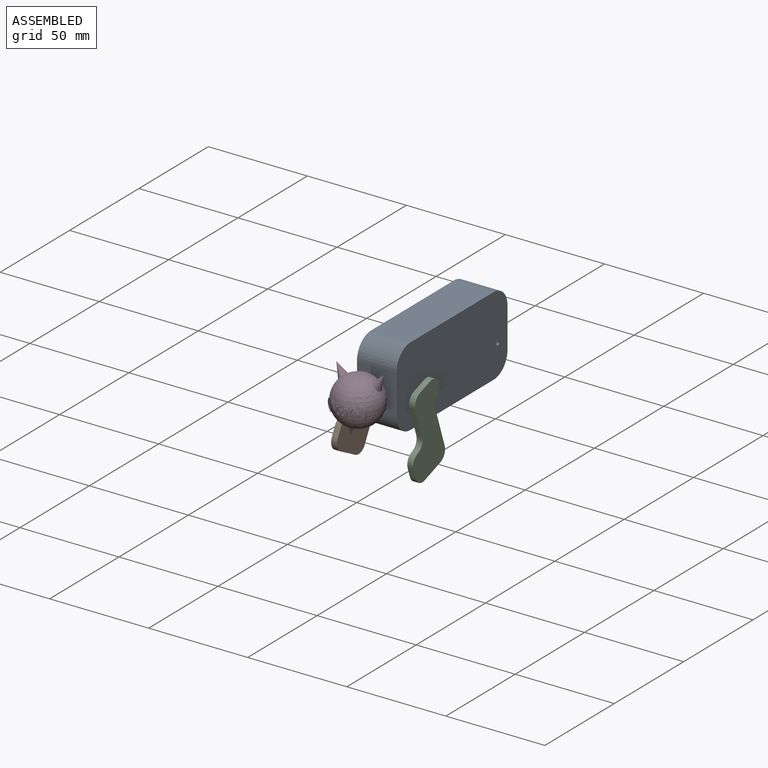
[diagram: assembled view]
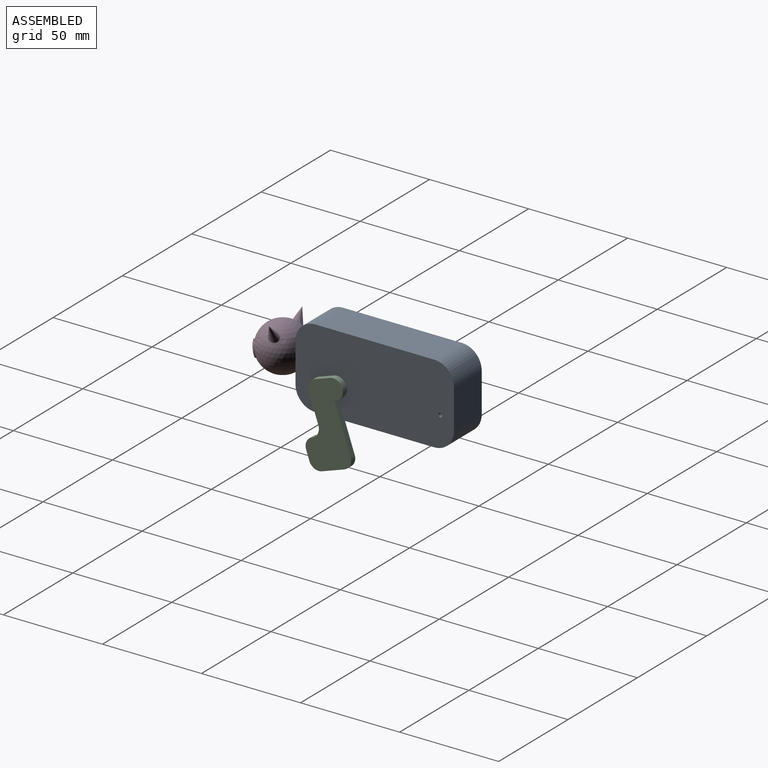
[diagram: assembled view, second angle]
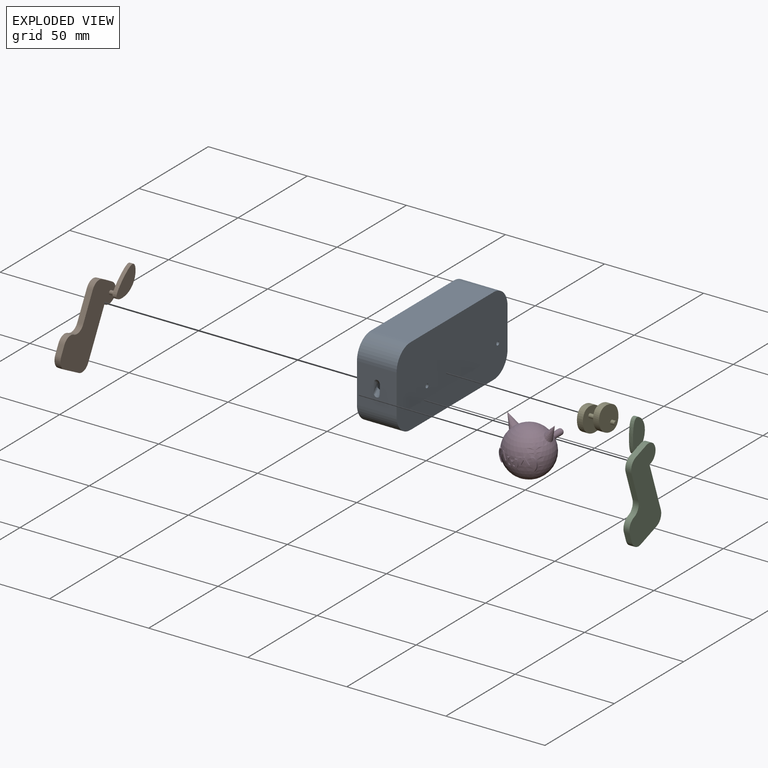
[diagram: exploded view]
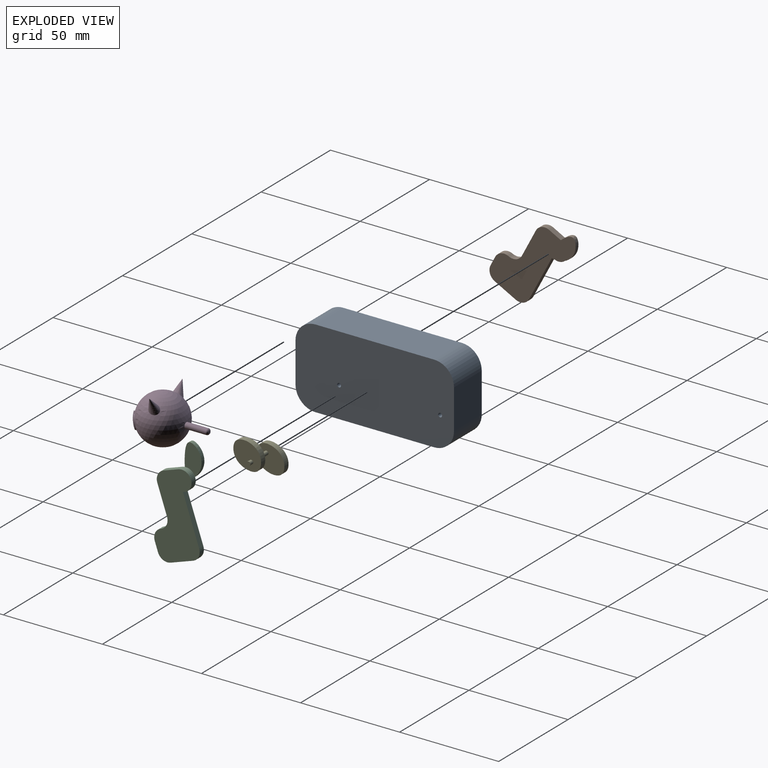
[diagram: exploded view, second angle]
ASSEMBLY  parts=5 mates=3
PART A: 29 faces, bbox 20x80x40 mm
  f0: plane 75x35mm, normal (-1,0,0), area 2567.3mm2, adj f2,f13,f14,f15,f16,f17,f18,f22
  f1: plane 75x35mm, normal (1,0,0), area 2567.3mm2, adj f2,f13,f14,f15,f16,f17,f18,f21
  f2: plane 20.01x15.01mm, normal (0,1,0), area 292.9mm2, adj f0,f1,f17,f18,f19
  f3: plane 60x20mm, normal (0,0,-1), area 1200mm2, adj f7,f8,f9,f12
  f4: plane 20x20mm, normal (0,1,0), area 400mm2, adj f7,f8,f9,f10
  f5: plane 60x20mm, normal (0,0,1), area 1200mm2, adj f7,f8,f10,f11
  f6: plane 20.01x20.01mm, normal (0,-1,0), area 377.9mm2, adj f7,f8,f11,f12,f19
  f7: plane 80x40mm, normal (1,0,0), area 3107.9mm2, adj f3,f4,f5,f6,f9,f10,f11,f12
  f8: plane 80x40mm, normal (-1,0,0), area 3107.9mm2, adj f3,f4,f5,f6,f9,f10,f11,f12
  f9: cylinder r=10mm len=20mm, axis (1,0,0), area 314.2mm2, adj f3,f4,f7,f8
  f10: cylinder r=10mm len=20mm, axis (-1,0,0), area 314.2mm2, adj f4,f5,f7,f8
  f11: cylinder r=10mm len=20mm, axis (1,0,0), area 314.2mm2, adj f5,f6,f7,f8
  f12: cylinder r=10mm len=20mm, axis (-1,0,0), area 314.2mm2, adj f3,f6,f7,f8
  f13: plane 20x15mm, normal (0,-1,0), area 300mm2, adj f0,f1,f15,f16
  f14: plane 60x15mm, normal (0,0,-1), area 900mm2, adj f0,f1,f16,f17
  f15: cylinder r=7.5mm len=15mm, axis (1,0,0), area 176.7mm2, adj f0,f1,f13,f28
  f16: cylinder r=7.5mm len=15mm, axis (-1,0,0), area 176.7mm2, adj f0,f1,f13,f14
  f17: cylinder r=7.5mm len=15mm, axis (1,0,0), area 176.7mm2, adj f0,f1,f2,f14
  f18: cylinder r=7.5mm len=15mm, axis (-1,0,0), area 176.7mm2, adj f0,f1,f2,f28
  f19: bspline ~7.99x3mm, area 40.2mm2, adj f2,f6
  f20: plane 2x2mm, normal (1,0,0), area 3.1mm2, adj f21
  f21: cylinder r=1mm len=2mm, axis (-1,0,0), area 9.4mm2, adj f1,f20
  f22: cylinder r=1mm len=2mm, axis (-1,0,0), area 9.4mm2, adj f0,f23
  f23: plane 2x2mm, normal (-1,0,0), area 3.1mm2, adj f22
  f24: cylinder r=1mm len=2.5mm, axis (1,0,0), area 15.7mm2, adj f0,f7
  f25: cylinder r=1mm len=2.5mm, axis (1,0,0), area 15.7mm2, adj f0,f7
  f26: cylinder r=1mm len=2.5mm, axis (-1,0,0), area 15.7mm2, adj f1,f8
  f27: cylinder r=1mm len=2.5mm, axis (-1,0,0), area 15.7mm2, adj f1,f8
  f28: plane 60x15mm, normal (0,0,1), area 900mm2, adj f0,f1,f15,f18
PART B: 18 faces, bbox 8x31.8x49.8 mm
  f0: plane 8x3mm, normal (0,0,1), area 24mm2, adj f6,f7,f8,f13
  f1: plane 15x3mm, normal (0,-1,0), area 45mm2, adj f6,f7,f8,f10
  f2: plane 5x3mm, normal (0,-1,0), area 15mm2, adj f6,f7,f9,f11
  f3: plane 12x3mm, normal (0,0,-1), area 36mm2, adj f6,f7,f11,f12
  f4: plane 25x3mm, normal (0,1,0), area 75mm2, adj f5,f6,f7,f12
  f5: plane 3x1mm, normal (0,0,-1), area 3mm2, adj f4,f6,f7,f13
  f6: plane 40x28mm, normal (-1,0,0), area 663.2mm2, adj f0,f1,f2,f3,f4,f5,f8,f9
  f7: plane 40x28mm, normal (1,0,0), area 660mm2, adj f0,f1,f2,f3,f4,f5,f8,f9
  f8: cylinder r=5mm len=5mm, axis (-1,0,0), area 23.6mm2, adj f0,f1,f6,f7
  f9: cylinder r=5mm len=5mm, axis (1,0,0), area 23.6mm2, adj f2,f6,f7,f10
  f10: cylinder r=5mm len=5mm, axis (-1,0,0), area 23.6mm2, adj f1,f6,f7,f9
  f11: cylinder r=5mm len=5mm, axis (1,0,0), area 23.6mm2, adj f2,f3,f6,f7
  f12: cylinder r=5mm len=5mm, axis (1,0,0), area 23.6mm2, adj f3,f4,f6,f7
  f13: cylinder r=5mm len=10mm, axis (1,0,0), area 47.1mm2, adj f0,f5,f6,f7
  f14: cylinder r=1mm len=3mm, axis (-1,0,0), area 18.8mm2, adj f7,f17
  f15: extruded ~15.72x10.25mm, area 81.6mm2, adj f16,f17
  f16: plane 16.58x11.06mm, normal (1,0,0), area 110.1mm2, adj f15
  f17: plane 16.58x11.06mm, normal (-1,0,0), area 107mm2, adj f14,f15
PART C: 18 faces, bbox 8x31.8x49.8 mm
  f0: plane 8x3mm, normal (0,0,1), area 24mm2, adj f6,f7,f8,f13
  f1: plane 15x3mm, normal (0,-1,0), area 45mm2, adj f6,f7,f8,f10
  f2: plane 5x3mm, normal (0,-1,0), area 15mm2, adj f6,f7,f9,f11
  f3: plane 12x3mm, normal (0,0,-1), area 36mm2, adj f6,f7,f11,f12
  f4: plane 25x3mm, normal (0,1,0), area 75mm2, adj f5,f6,f7,f12
  f5: plane 3x1mm, normal (0,0,-1), area 3mm2, adj f4,f6,f7,f13
  f6: plane 40x28mm, normal (1,0,0), area 663.2mm2, adj f0,f1,f2,f3,f4,f5,f8,f9
  f7: plane 40x28mm, normal (-1,0,0), area 660mm2, adj f0,f1,f2,f3,f4,f5,f8,f9
  f8: cylinder r=5mm len=5mm, axis (1,0,0), area 23.6mm2, adj f0,f1,f6,f7
  f9: cylinder r=5mm len=5mm, axis (-1,0,0), area 23.6mm2, adj f2,f6,f7,f10
  f10: cylinder r=5mm len=5mm, axis (1,0,0), area 23.6mm2, adj f1,f6,f7,f9
  f11: cylinder r=5mm len=5mm, axis (-1,0,0), area 23.6mm2, adj f2,f3,f6,f7
  f12: cylinder r=5mm len=5mm, axis (-1,0,0), area 23.6mm2, adj f3,f4,f6,f7
  f13: cylinder r=5mm len=10mm, axis (-1,0,0), area 47.1mm2, adj f0,f5,f6,f7
  f14: cylinder r=1mm len=3mm, axis (1,0,0), area 18.8mm2, adj f7,f17
  f15: extruded ~15.72x10.25mm, area 81.6mm2, adj f16,f17
  f16: plane 16.58x11.06mm, normal (-1,0,0), area 110.1mm2, adj f15
  f17: plane 16.58x11.06mm, normal (1,0,0), area 107mm2, adj f14,f15
PART D: 73 faces, bbox 24.1x36.1x26.1 mm
  f0: sphere r=12mm, area 1716.8mm2, adj f1,f4,f5,f7,f8,f9,f10,f11
  f1: cylinder r=1.5mm len=10.59mm, axis (0,-1,0), area 99.8mm2, adj f0,f3
  f2: plane 1x1mm, normal (0,1,0), area 0.8mm2, adj f3
  f3: torus R=0.5mm, axis (0,-1,0), area 11.2mm2, adj f1,f2
  f4: bspline ~10x9mm, area 57.8mm2, adj f0
  f5: bspline ~10x9mm, area 57.8mm2, adj f0
  f6: sphere r=12.5mm, area 9.6mm2, adj f7,f8,f9,f10,f11,f12,f13,f14
  f7: plane 1.55x0.93mm, normal (0,0,1), area 0.6mm2, adj f0,f6,f8,f9
  f8: extruded ~1.5x1.37mm, area 1.3mm2, adj f0,f6,f7,f16
  f9: extruded ~1.57x1.09mm, area 1.2mm2, adj f0,f6,f7,f10
  f10: extruded ~1.76x0.97mm, area 1.3mm2, adj f0,f6,f9,f11
  f11: extruded ~1.76x0.81mm, area 1.3mm2, adj f0,f6,f10,f13
  f12: plane 1.68x0.92mm, normal (0,0,-1), area 0.7mm2, adj f0,f6,f13,f14
  f13: extruded ~1.54x0.84mm, area 1.2mm2, adj f0,f6,f11,f12
  f14: extruded ~1.48x1.14mm, area 1.4mm2, adj f0,f6,f12,f15
  f15: extruded ~1.81x0.9mm, area 1.5mm2, adj f0,f6,f14,f16
  f16: extruded ~1.84x1.16mm, area 1.5mm2, adj f0,f6,f8,f15
  f17: sphere r=12.5mm, area 6mm2, adj f18,f19,f20,f21,f22,f23,f24
  f18: plane 0.85x0.53mm, normal (0,0,1), area 0.3mm2, adj f0,f17,f19,f20
  f19: plane 3.53x1.84mm, normal (0.89,0,0.46), area 2.1mm2, adj f0,f17,f18,f21
  f20: plane 3.53x1.63mm, normal (-0.91,0,0.42), area 2.3mm2, adj f0,f17,f18,f24
  f21: plane 0.89x0.82mm, normal (0,0,-1), area 0.5mm2, adj f0,f17,f19,f22
  f22: plane 2.44x1.25mm, normal (-0.89,0,-0.45), area 1.5mm2, adj f0,f17,f21,f23
  f23: plane 2.46x1.2mm, normal (0.92,0,-0.4), area 1.5mm2, adj f0,f17,f22,f24
  f24: plane 1.22x0.88mm, normal (0,0,-1), area 0.5mm2, adj f0,f17,f20,f23
  f25: sphere r=12.5mm, area 13.2mm2, adj f26,f27,f28,f29,f30,f31,f32,f33
  f26: plane 0.51x0.04mm, normal (0,0,-1), area 0mm2, adj f0,f25,f27,f28
  f27: extruded ~0.64x0.59mm, area 0.4mm2, adj f0,f25,f26,f53
  f28: extruded ~0.65x0.59mm, area 0.4mm2, adj f0,f25,f26,f29
  f29: extruded ~0.73x0.62mm, area 0.4mm2, adj f0,f25,f28,f30
  f30: extruded ~1.23x0.59mm, area 0.7mm2, adj f0,f25,f29,f31
  f31: extruded ~1.53x0.64mm, area 0.8mm2, adj f0,f25,f30,f32
  f32: extruded ~1.05x0.58mm, area 0.5mm2, adj f0,f25,f31,f34
  f33: plane 1.09x0.69mm, normal (0,0,1), area 0.6mm2, adj f0,f25,f34,f35
  f34: extruded ~1.08x0.53mm, area 0.6mm2, adj f0,f25,f32,f33
  f35: extruded ~2.1x0.55mm, area 1.1mm2, adj f0,f25,f33,f36
  f36: extruded ~0.93x0.59mm, area 0.5mm2, adj f0,f25,f35,f37
  f37: extruded ~0.54x0.52mm, area 0.3mm2, adj f0,f25,f36,f38
  f38: extruded ~0.58x0.45mm, area 0.3mm2, adj f0,f25,f37,f42
  f39: plane 1.1x0.57mm, normal (-1,0,0), area 0.5mm2, adj f0,f25,f40,f42
  f40: plane 1.04x0.52mm, normal (0,0,1), area 0.5mm2, adj f0,f25,f39,f41
  f41: plane 1.1x0.56mm, normal (1,0,0), area 0.5mm2, adj f0,f25,f40,f43
  f42: extruded ~0.71x0.61mm, area 0.4mm2, adj f0,f25,f38,f39
  f43: extruded ~0.71x0.61mm, area 0.4mm2, adj f0,f25,f41,f44
  f44: extruded ~0.58x0.45mm, area 0.3mm2, adj f0,f25,f43,f45
  f45: extruded ~0.53x0.51mm, area 0.3mm2, adj f0,f25,f44,f46
  f46: extruded ~0.92x0.59mm, area 0.5mm2, adj f0,f25,f45,f48
  f47: plane 1.09x0.67mm, normal (0,0,1), area 0.6mm2, adj f0,f25,f48,f49
  f48: extruded ~2.11x0.54mm, area 1.1mm2, adj f0,f25,f46,f47
  f49: extruded ~1.08x0.52mm, area 0.6mm2, adj f0,f25,f47,f50
  f50: extruded ~1.05x0.57mm, area 0.5mm2, adj f0,f25,f49,f51
  f51: extruded ~1.53x0.65mm, area 0.8mm2, adj f0,f25,f50,f52
  f52: extruded ~1.23x0.57mm, area 0.7mm2, adj f0,f25,f51,f53
  f53: extruded ~0.74x0.61mm, area 0.4mm2, adj f0,f25,f27,f52
  f54: sphere r=12.5mm, area 5.9mm2, adj f55,f56,f57,f58,f59,f60,f61
  f55: plane 0.82x0.53mm, normal (0,0,1), area 0.3mm2, adj f0,f54,f56,f57
  f56: plane 3.53x1.84mm, normal (0.89,0,0.46), area 2.3mm2, adj f0,f54,f55,f58
  f57: plane 3.53x1.63mm, normal (-0.91,0,0.42), area 2.1mm2, adj f0,f54,f55,f61
  f58: plane 1.2x0.89mm, normal (0,0,-1), area 0.5mm2, adj f0,f54,f56,f59
  f59: plane 2.45x1.26mm, normal (-0.89,0,-0.45), area 1.5mm2, adj f0,f54,f58,f60
  f60: plane 2.44x1.09mm, normal (0.92,0,-0.4), area 1.4mm2, adj f0,f54,f59,f61
  f61: plane 0.88x0.8mm, normal (0,0,-1), area 0.5mm2, adj f0,f54,f57,f60
  f62: sphere r=12.5mm, area 9.4mm2, adj f63,f64,f65,f66,f67,f68,f69,f70
  f63: plane 1.62x0.92mm, normal (0,0,-1), area 0.7mm2, adj f0,f62,f64,f65
  f64: extruded ~1.47x1.08mm, area 1.4mm2, adj f0,f62,f63,f72
  f65: extruded ~1.53x0.8mm, area 1.2mm2, adj f0,f62,f63,f66
  f66: extruded ~1.76x0.8mm, area 1.3mm2, adj f0,f62,f65,f67
  f67: extruded ~1.76x0.94mm, area 1.2mm2, adj f0,f62,f66,f69
  f68: plane 1.5x0.93mm, normal (0,0,1), area 0.6mm2, adj f0,f62,f69,f70
  f69: extruded ~1.57x1.06mm, area 1.2mm2, adj f0,f62,f67,f68
  f70: extruded ~1.51x1.31mm, area 1.3mm2, adj f0,f62,f68,f71
  f71: extruded ~1.84x1.12mm, area 1.5mm2, adj f0,f62,f70,f72
  f72: extruded ~1.82x0.88mm, area 1.5mm2, adj f0,f62,f64,f71
PART E: 11 faces, bbox 18x17.5x20.1 mm
  f0: cylinder r=1mm len=8mm, axis (-1,0,0), area 50.3mm2, adj f2,f7
  f1: extruded ~14.5x12.71mm, area 130.2mm2, adj f2,f3
  f2: plane 15.25x13.47mm, normal (-1,0,0), area 143.5mm2, adj f0,f1
  f3: plane 15.25x13.47mm, normal (1,0,0), area 143.5mm2, adj f1,f5
  f4: plane 2x2mm, normal (1,0,0), area 3.1mm2, adj f5
  f5: cylinder r=1mm len=2mm, axis (-1,0,0), area 12.6mm2, adj f3,f4
  f6: extruded ~14.5x12.71mm, area 130.2mm2, adj f7,f8
  f7: plane 15.25x13.47mm, normal (1,0,0), area 143.5mm2, adj f0,f6
  f8: plane 15.25x13.47mm, normal (-1,0,0), area 143.5mm2, adj f6,f10
  f9: plane 2x2mm, normal (-1,0,0), area 3.1mm2, adj f10
  f10: cylinder r=1mm len=2mm, axis (-1,0,0), area 12.6mm2, adj f8,f9
PLACE A t=(0,-95.57,0)mm
PLACE B rot(axis=(-1,0,0),27.8deg) t=(-0.25,-95.55,-8.91)mm
PLACE C rot(axis=(1,0,0),19deg) t=(0.25,-98.03,5.63)mm
PLACE D t=(0,-95.57,0)mm
PLACE E rot(axis=(1,0,0),80.3deg) t=(0,-102.84,0.62)mm
MATE revolute B.f14 <-> A.f24  axis (-1,0,0) through (-8.75,-113.57,-4.5)mm
MATE revolute C.f14 <-> A.f24  axis (1,0,0) through (8.75,-113.57,-4.5)mm
MATE revolute A.f21 <-> E.f0  axis (-1,0,0) through (9,-99.57,-4)mm
